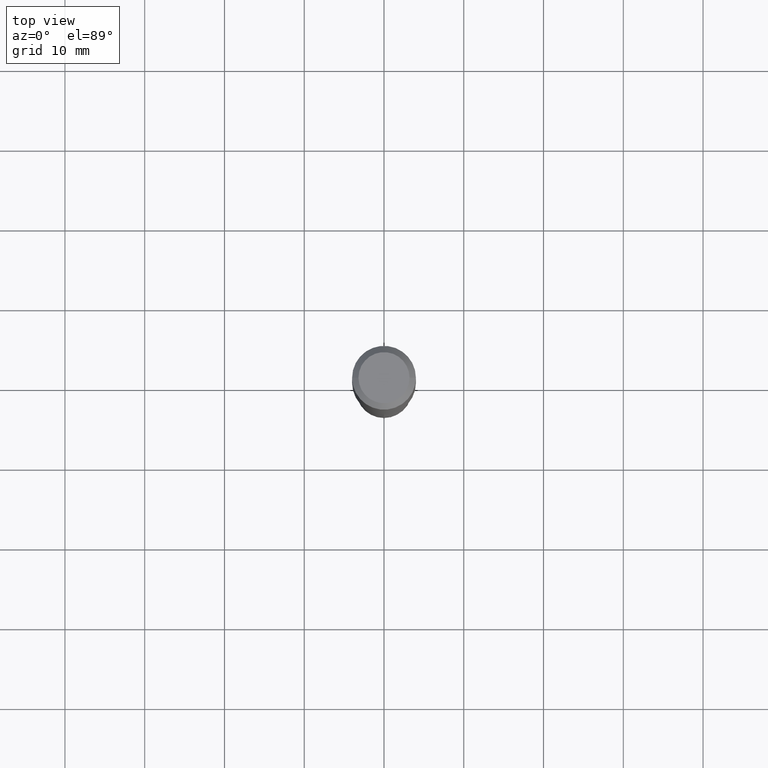
[diagram: clean part render]
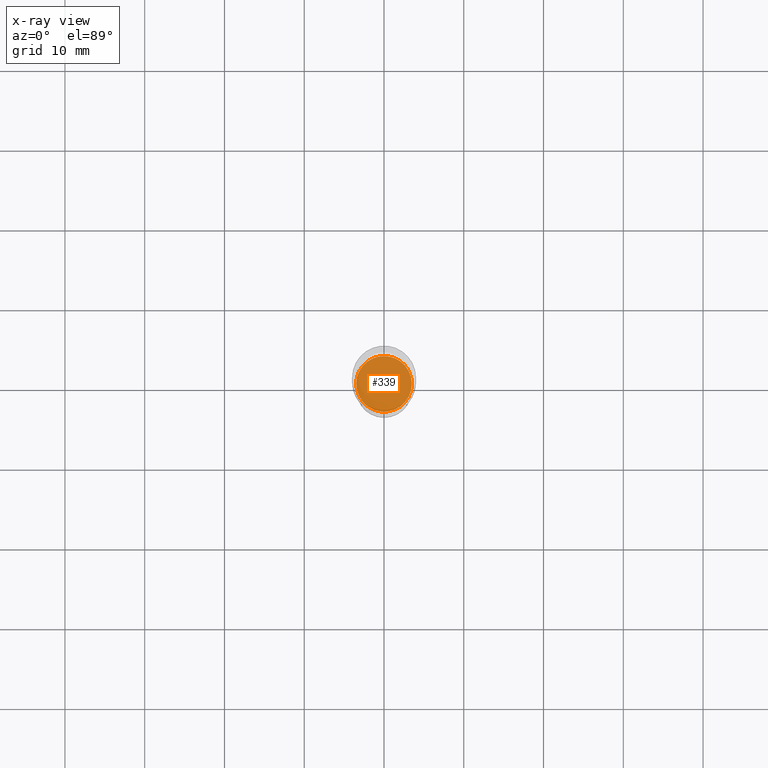
[diagram: x-ray — body ghosted, one internal face saturated and labeled with its STEP entity id]
A machine part, top view, then the same camera in x-ray: the body is ghosted and one INTERNAL B-rep face — a face not visible from any outside direction — is saturated and labeled: STEP entity #339.
In plain terms, the highlighted planar face has unit normal (-0, 0, 1).
Its self-contained STEP definition (entity closure, byte-faithful):
#8 = CARTESIAN_POINT ( 'NONE',  ( 4.332637083918206427E-29, -6.185857488028401081E-15, -1.771700000000000053 ) ) ;
#49 = DIRECTION ( 'NONE',  ( -2.445468806185136597E-29, 3.491481338843145583E-15, 1.000000000000000000 ) ) ;
#51 = ORIENTED_EDGE ( 'NONE', *, *, #142, .F. ) ;
#69 = CARTESIAN_POINT ( 'NONE',  ( 0.1373000000000000054, -7.144618263674725551E-15, -1.771700000000000053 ) ) ;
#90 = DIRECTION ( 'NONE',  ( -2.445468806185136597E-29, 3.491481338843145583E-15, 1.000000000000000000 ) ) ;
#99 = DIRECTION ( 'NONE',  ( -2.438088387897960049E-29, 3.491481338843145188E-15, 1.000000000000000000 ) ) ;
#109 = VERTEX_POINT ( 'NONE', #69 ) ;
#117 = ORIENTED_EDGE ( 'NONE', *, *, #160, .F. ) ;
#132 = DIRECTION ( 'NONE',  ( 1.000000000000000000, -6.982962677686269866E-15, 0.000000000000000000 ) ) ;
#140 = CARTESIAN_POINT ( 'NONE',  ( 6.794228106170702383E-29, -2.660719039102707943E-15, -1.771700000000000053 ) ) ;
#142 = EDGE_CURVE ( 'NONE', #293, #109, #297, .T. ) ;
#144 = EDGE_LOOP ( 'NONE', ( #117, #51 ) ) ;
#147 = AXIS2_PLACEMENT_3D ( 'NONE', #140, #99, #407 ) ;
#160 = EDGE_CURVE ( 'NONE', #109, #293, #334, .T. ) ;
#177 = CARTESIAN_POINT ( 'NONE',  ( -0.1373000000000000054, -5.207633084655674062E-15, -1.771700000000000053 ) ) ;
#189 = AXIS2_PLACEMENT_3D ( 'NONE', #337, #49, #132 ) ;
#204 = DIRECTION ( 'NONE',  ( 1.000000000000000000, -6.982962677686269866E-15, 0.000000000000000000 ) ) ;
#262 = FACE_OUTER_BOUND ( 'NONE', #144, .T. ) ;
#293 = VERTEX_POINT ( 'NONE', #177 ) ;
#297 = CIRCLE ( 'NONE', #393, 0.1373000000000000054 ) ;
#306 = PLANE ( 'NONE',  #147 ) ;
#334 = CIRCLE ( 'NONE', #189, 0.1373000000000000054 ) ;
#337 = CARTESIAN_POINT ( 'NONE',  ( 4.332637083918206427E-29, -6.185857488028401081E-15, -1.771700000000000053 ) ) ;
#339 = ADVANCED_FACE ( 'NONE', ( #262 ), #306, .F. ) ;
#393 = AXIS2_PLACEMENT_3D ( 'NONE', #8, #90, #204 ) ;
#407 = DIRECTION ( 'NONE',  ( 1.000000000000000000, -6.982962677686265922E-15, 4.876176775795935793E-29 ) ) ;